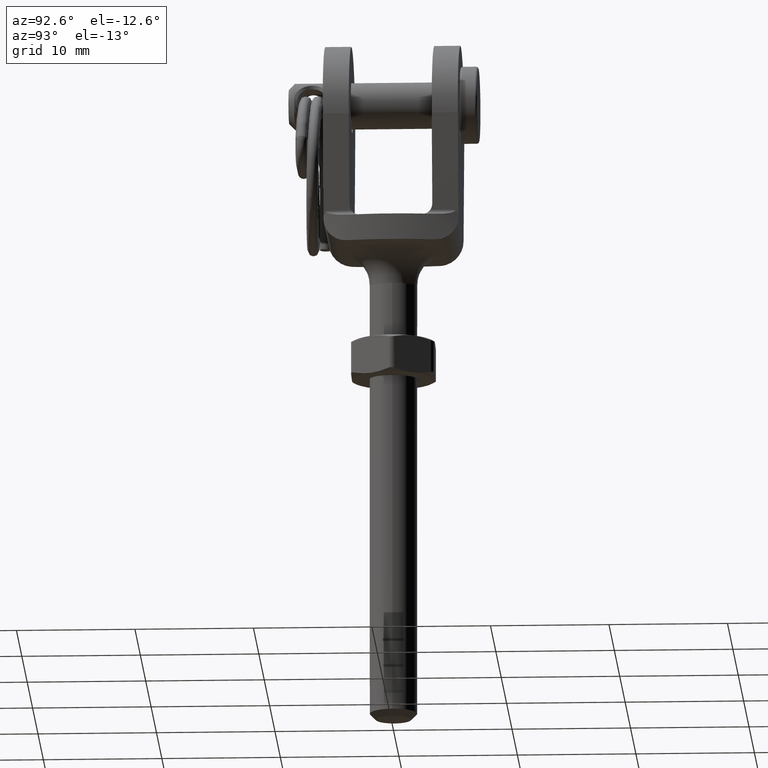
[diagram: clean part render]
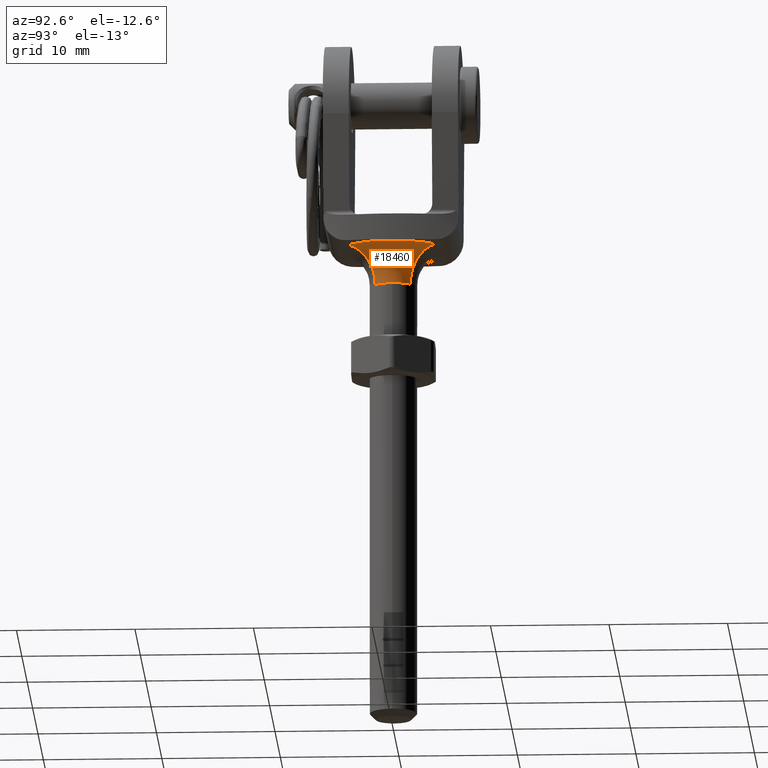
[diagram: same view with one face highlighted and labeled with its STEP entity id]
A machine part, auxiliary view. The second image highlights one B-rep face of the part: STEP entity #18460.
In plain terms, the highlighted toroidal blend (fillet) surface has major radius 5 mm and minor (blend) radius 3 mm.
Its self-contained STEP definition (entity closure, byte-faithful):
#1654 = CARTESIAN_POINT ( 'NONE',  ( 0.000000000000000000, 0.000000000000000000, -5.199999999999996625 ) ) ;
#1752 = CARTESIAN_POINT ( 'NONE',  ( 0.000000000000000000, 0.000000000000000000, -5.199999999999996625 ) ) ;
#1989 = VERTEX_POINT ( 'NONE', #18804 ) ;
#2901 = AXIS2_PLACEMENT_3D ( 'NONE', #1752, #9598, #6364 ) ;
#3386 = EDGE_LOOP ( 'NONE', ( #4468, #19343, #11132, #12810 ) ) ;
#3758 = CIRCLE ( 'NONE', #4191, 5.000000000000000000 ) ;
#4191 = AXIS2_PLACEMENT_3D ( 'NONE', #14812, #19299, #8578 ) ;
#4468 = ORIENTED_EDGE ( 'NONE', *, *, #15527, .T. ) ;
#5170 = EDGE_CURVE ( 'NONE', #14143, #1989, #15803, .T. ) ;
#6364 = DIRECTION ( 'NONE',  ( -1.000000000000000000, 0.000000000000000000, 0.000000000000000000 ) ) ;
#6448 = CARTESIAN_POINT ( 'NONE',  ( 1.345213737664018971, -1.479999999999999982, -5.199999999999996625 ) ) ;
#6616 = CARTESIAN_POINT ( 'NONE',  ( 3.363034344160047429, 3.700000000000000178, -5.200000000000001066 ) ) ;
#7708 = CIRCLE ( 'NONE', #15671, 2.999999999999999556 ) ;
#8578 = DIRECTION ( 'NONE',  ( -1.000000000000000000, 8.881784197001252323E-16, 8.673617379884035472E-17 ) ) ;
#9598 = DIRECTION ( 'NONE',  ( -1.224646799147353207E-16, 0.000000000000000000, -1.000000000000000000 ) ) ;
#9638 = CARTESIAN_POINT ( 'NONE',  ( 3.363034344160047873, 3.700000000000000178, -2.200000000000000622 ) ) ;
#9880 = VERTEX_POINT ( 'NONE', #18651 ) ;
#11106 = DIRECTION ( 'NONE',  ( -1.224646799147353207E-16, 0.000000000000000000, -1.000000000000000000 ) ) ;
#11132 = ORIENTED_EDGE ( 'NONE', *, *, #5170, .F. ) ;
#12201 = EDGE_CURVE ( 'NONE', #9880, #14143, #3758, .T. ) ;
#12810 = ORIENTED_EDGE ( 'NONE', *, *, #12201, .F. ) ;
#13031 = TOROIDAL_SURFACE ( 'NONE', #16290, 5.000000000000000000, 3.000000000000000000 ) ;
#13556 = CIRCLE ( 'NONE', #2901, 2.000000000000000000 ) ;
#13813 = VERTEX_POINT ( 'NONE', #6448 ) ;
#13929 = CARTESIAN_POINT ( 'NONE',  ( 3.363034344160047873, -3.700000000000000178, -5.200000000000001066 ) ) ;
#14143 = VERTEX_POINT ( 'NONE', #9638 ) ;
#14221 = FACE_OUTER_BOUND ( 'NONE', #3386, .T. ) ;
#14812 = CARTESIAN_POINT ( 'NONE',  ( 3.673940397442054938E-16, 0.000000000000000000, -2.200000000000000178 ) ) ;
#15515 = DIRECTION ( 'NONE',  ( -0.7399999999999999911, -0.6726068688320094857, 0.000000000000000000 ) ) ;
#15527 = EDGE_CURVE ( 'NONE', #9880, #13813, #7708, .T. ) ;
#15671 = AXIS2_PLACEMENT_3D ( 'NONE', #13929, #15515, #16846 ) ;
#15694 = EDGE_CURVE ( 'NONE', #1989, #13813, #13556, .T. ) ;
#15742 = DIRECTION ( 'NONE',  ( -1.000000000000000000, 0.000000000000000000, 1.224646799147353207E-16 ) ) ;
#15803 = CIRCLE ( 'NONE', #16132, 3.000000000000000000 ) ;
#16132 = AXIS2_PLACEMENT_3D ( 'NONE', #6616, #17439, #17577 ) ;
#16290 = AXIS2_PLACEMENT_3D ( 'NONE', #1654, #11106, #15742 ) ;
#16846 = DIRECTION ( 'NONE',  ( 0.6726068688320094857, -0.7399999999999999911, 0.000000000000000000 ) ) ;
#17439 = DIRECTION ( 'NONE',  ( 0.7400000000000001021, -0.6726068688320094857, -1.069746143519031124E-16 ) ) ;
#17577 = DIRECTION ( 'NONE',  ( 0.6726068688320094857, 0.7399999999999998801, 0.000000000000000000 ) ) ;
#18460 = ADVANCED_FACE ( 'NONE', ( #14221 ), #13031, .F. ) ;
#18651 = CARTESIAN_POINT ( 'NONE',  ( 3.363034344160047873, -3.700000000000000178, -2.200000000000000622 ) ) ;
#18804 = CARTESIAN_POINT ( 'NONE',  ( 1.345213737664018971, 1.479999999999999982, -5.199999999999996625 ) ) ;
#19299 = DIRECTION ( 'NONE',  ( 1.224646799147353207E-16, -0.000000000000000000, 1.000000000000000000 ) ) ;
#19343 = ORIENTED_EDGE ( 'NONE', *, *, #15694, .F. ) ;